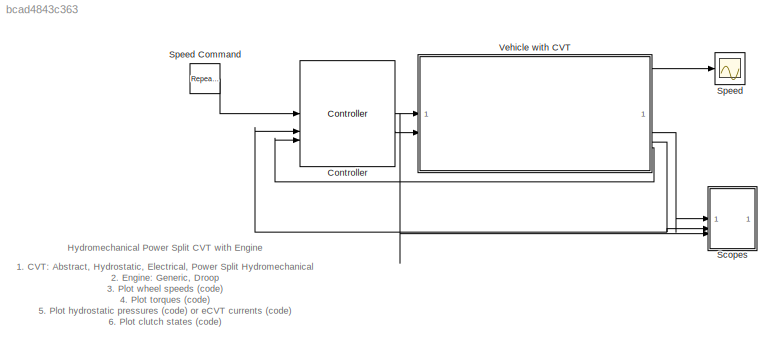
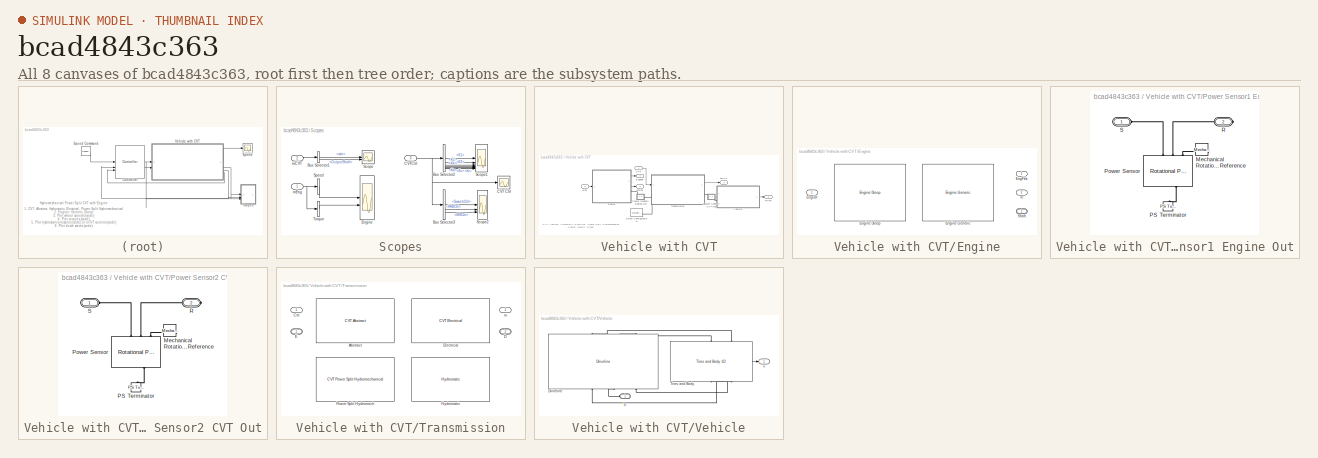
[diagram: thumbnail index - all 8 canvases of the model, root first then tree order]
MODEL slx_bcad4843c363
KIND model
CONFIG AbsTol = auto
CONFIG EnableMultiTasking = off
CONFIG FixedStep = auto
CONFIG MaxStep = auto
CONFIG MinStep = auto
CONFIG RelTol = 1e-3
CONFIG SampleTimeConstraint = Unconstrained
CONFIG SolverName = VariableStepAuto
CONFIG StartFcn = tic
CONFIG StartTime = 0.0
CONFIG StopFcn = Elapsed_Sim_Time = toc;\ndisp(['Elapsed Sim Time = ' num2str(Elapsed_Sim_Time)]);
CONFIG StopTime = 70
BLOCK [Reference] Controller  REF=sm_wheel_loader_lib/Controller  (lib defined in slx_2f13f0afc9e9, slx_78fdec152d5c)
  SourceBlock = sm_wheel_loader_lib/Controller
  SourceType = SubSystem
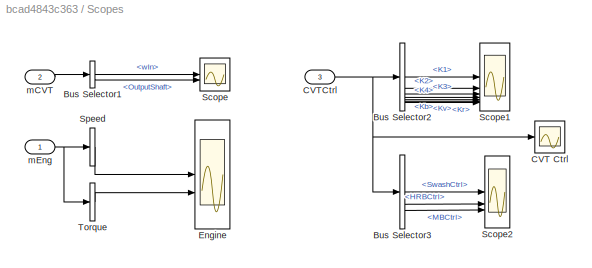
BLOCK [SubSystem] Scopes
BLOCK [BusSelector] Scopes/Bus Selector1
  OutputSignals = wIn,OutputShaft
BLOCK [BusSelector] Scopes/Bus Selector2
  NameLocation = top
  OutputSignals = K1,K2,K3,K4,Kb,Kv,Kr
BLOCK [BusSelector] Scopes/Bus Selector3
  OutputSignals = SwashCtrl,HRBCtrl,MBCtrl
BLOCK [Scope] Scopes/CVT Ctrl
  Floating = off
  NumInputPorts = 1
  ScopeSpecificationString = Simulink.scopes.TimeScopeBlockCfg('CurrentConfiguration', extmgr.ConfigurationSet(extmgr.Configuration('Core','General UI',true),extmgr.Configuration('Core','Source UI',true),extmgr.Configuration('Sources','WiredSimulink',true,'DataLoggingVariableName','ScopeData2'),extmgr.Configuration('Visuals','Time Domain',true,'SerializedDisplays',{struct('MinYLimReal','-0.96987','MaxYLimReal','1.21887','YLab...<+1872ch>
BLOCK [Inport] Scopes/CVTCtrl
  Port = 3
BLOCK [Scope] Scopes/Engine
  Floating = off
  NumInputPorts = 2
  ScopeSpecificationString = Simulink.scopes.TimeScopeBlockCfg('CurrentConfiguration', extmgr.ConfigurationSet(extmgr.Configuration('Core','General UI',true),extmgr.Configuration('Core','Source UI',true),extmgr.Configuration('Sources','WiredSimulink',true,'DataLoggingVariableName','ScopeData1'),extmgr.Configuration('Visuals','Time Domain',true,'SerializedDisplays',{struct('MinYLimReal','-286.4333','MaxYLimReal','2577.89969','...<+2089ch>
BLOCK [Scope] Scopes/Scope
  Floating = off
  NumInputPorts = 2
  ScopeSpecificationString = Simulink.scopes.TimeScopeBlockCfg('CurrentConfiguration', extmgr.ConfigurationSet(extmgr.Configuration('Core','General UI',true),extmgr.Configuration('Core','Source UI',true),extmgr.Configuration('Sources','WiredSimulink',true,'DataLoggingVariableName','ScopeData4'),extmgr.Configuration('Visuals','Time Domain',true,'SerializedDisplays',{struct('MinYLimReal','-1460.02488','MaxYLimReal','1460.04785'...<+2070ch>
BLOCK [Scope] Scopes/Scope1
  Floating = off
  NumInputPorts = 7
  ScopeSpecificationString = Simulink.scopes.TimeScopeBlockCfg('CurrentConfiguration', extmgr.ConfigurationSet(extmgr.Configuration('Core','General UI',true),extmgr.Configuration('Core','Source UI',true),extmgr.Configuration('Sources','WiredSimulink',true,'DataLoggingVariableName','ScopeData3'),extmgr.Configuration('Visuals','Time Domain',true,'SerializedDisplays',{struct('MinYLimReal','-0.125','MaxYLimReal','1.125','YLabelRe...<+6158ch>
BLOCK [Scope] Scopes/Scope2
  Floating = off
  NumInputPorts = 3
  ScopeSpecificationString = Simulink.scopes.TimeScopeBlockCfg('CurrentConfiguration', extmgr.ConfigurationSet(extmgr.Configuration('Core','General UI',true),extmgr.Configuration('Core','Source UI',true),extmgr.Configuration('Sources','WiredSimulink',true,'DataLoggingVariableName','ScopeData4'),extmgr.Configuration('Visuals','Time Domain',true,'SerializedDisplays',{struct('MinYLimReal','-0.96987','MaxYLimReal','1.21887','YLab...<+1476ch>
BLOCK [BusSelector] Scopes/Speed
  OutputAsBus = on
  OutputSignals = w.cmd,w.meas
BLOCK [BusSelector] Scopes/Torque
  OutputAsBus = on
  OutputSignals = trq.Cmd
BLOCK [Inport] Scopes/mCVT
  Port = 2
BLOCK [Inport] Scopes/mEng
BLOCK [Scope] Speed
  Floating = off
  NumInputPorts = 1
  ScopeSpecificationString = Simulink.scopes.TimeScopeBlockCfg('CurrentConfiguration', extmgr.ConfigurationSet(extmgr.Configuration('Core','General UI',true),extmgr.Configuration('Core','Source UI',true),extmgr.Configuration('Sources','WiredSimulink',true,'DataLoggingVariableName','ScopeData1'),extmgr.Configuration('Visuals','Time Domain',true,'SerializedDisplays',{struct('MinYLimReal','-9.37204','MaxYLimReal','9.37302','YLab...<+1496ch>
BLOCK [Reference] Speed Command  REF=simulink/Sources/Repeating
Sequence
  SourceBlock = simulink/Sources/Repeating\nSequence
  SourceType = Repeating table
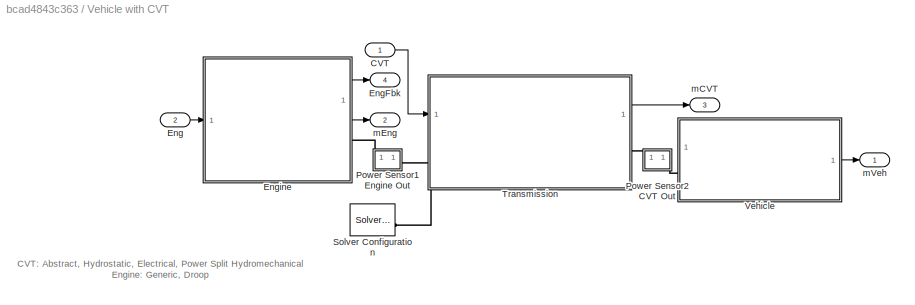
BLOCK [SubSystem] Vehicle with CVT
BLOCK [Inport] Vehicle with CVT/CVT
  NameLocation = top
BLOCK [Inport] Vehicle with CVT/Eng
  Port = 2
BLOCK [Outport] Vehicle with CVT/EngFbk
  Port = 4
BLOCK [SubSystem] Vehicle with CVT/Engine
  AttributesFormatString = %<LabelModeActiveChoice>
  LabelModeActiveChoice = Droop
  Variant = on
  VariantControl = Choice
  VariantControlMode = label
BLOCK [Inport] Vehicle with CVT/Engine/EngCtrl
BLOCK [Outport] Vehicle with CVT/Engine/EngFbk
BLOCK [Reference] Vehicle with CVT/Engine/Engine Droop  REF=sm_wheel_loader_lib/Engine Droop  (lib defined in slx_2f13f0afc9e9, slx_78fdec152d5c)
  SourceBlock = sm_wheel_loader_lib/Engine Droop
BLOCK [Reference] Vehicle with CVT/Engine/Engine Generic  REF=sm_wheel_loader_lib/Engine Generic  (lib defined in slx_2f13f0afc9e9, slx_78fdec152d5c)
  SourceBlock = sm_wheel_loader_lib/Engine Generic
BLOCK [PMIOPort] Vehicle with CVT/Engine/Shaft
  Side = Right
BLOCK [Outport] Vehicle with CVT/Engine/m
  Port = 2
BLOCK [SubSystem] Vehicle with CVT/Power Sensor1 Engine Out
BLOCK [Reference] Vehicle with CVT/Power Sensor1 Engine Out/Mechanical Rotational Reference  REF=fl_lib/Mechanical/Rotational Elements/Mechanical
Rotational Reference
  NameLocation = top
  SourceBlock = fl_lib/Mechanical/Rotational Elements/Mechanical\nRotational Reference
  SourceType = Mechanical\nRotational Reference
BLOCK [Reference] Vehicle with CVT/Power Sensor1 Engine Out/PS Terminator  REF=fl_lib/Physical Signals/Sinks/PS Terminator
  NameLocation = left
  SourceBlock = fl_lib/Physical Signals/Sinks/PS Terminator
  SourceType = PS Terminator
BLOCK [Reference] Vehicle with CVT/Power Sensor1 Engine Out/Power Sensor  REF=sdl_lib/Sensors/Rotational Power
Sensor
  NameLocation = left
  SourceBlock = sdl_lib/Sensors/Rotational Power\nSensor
  SourceType = Rotational Power\nSensor
BLOCK [PMIOPort] Vehicle with CVT/Power Sensor1 Engine Out/R
  Port = 2
  Side = Right
BLOCK [PMIOPort] Vehicle with CVT/Power Sensor1 Engine Out/S
  Side = Left
BLOCK [SubSystem] Vehicle with CVT/Power Sensor2 CVT Out
BLOCK [Reference] Vehicle with CVT/Power Sensor2 CVT Out/Mechanical Rotational Reference  REF=fl_lib/Mechanical/Rotational Elements/Mechanical
Rotational Reference
  NameLocation = top
  SourceBlock = fl_lib/Mechanical/Rotational Elements/Mechanical\nRotational Reference
  SourceType = Mechanical\nRotational Reference
BLOCK [Reference] Vehicle with CVT/Power Sensor2 CVT Out/PS Terminator  REF=fl_lib/Physical Signals/Sinks/PS Terminator
  NameLocation = left
  SourceBlock = fl_lib/Physical Signals/Sinks/PS Terminator
  SourceType = PS Terminator
BLOCK [Reference] Vehicle with CVT/Power Sensor2 CVT Out/Power Sensor  REF=sdl_lib/Sensors/Rotational Power
Sensor
  NameLocation = left
  SourceBlock = sdl_lib/Sensors/Rotational Power\nSensor
  SourceType = Rotational Power\nSensor
BLOCK [PMIOPort] Vehicle with CVT/Power Sensor2 CVT Out/R
  Port = 2
  Side = Right
BLOCK [PMIOPort] Vehicle with CVT/Power Sensor2 CVT Out/S
  Side = Left
BLOCK [Reference] Vehicle with CVT/Solver Configuration  REF=nesl_utility/Solver
Configuration
  SourceBlock = nesl_utility/Solver\nConfiguration
  SourceType = Solver\nConfiguration
BLOCK [SubSystem] Vehicle with CVT/Transmission
  AttributesFormatString = %<LabelModeActiveChoice>
  LabelModeActiveChoice = Abstract
  Variant = on
  VariantControl = Choice
  VariantControlMode = label
BLOCK [Reference] Vehicle with CVT/Transmission/Abstract  REF=sm_wheel_loader_lib/CVT Abstract  (lib defined in slx_2f13f0afc9e9, slx_78fdec152d5c)
  SourceBlock = sm_wheel_loader_lib/CVT Abstract
  SourceType = Continuously Variable Transmission (Abstract)
BLOCK [Inport] Vehicle with CVT/Transmission/Ctrl
BLOCK [PMIOPort] Vehicle with CVT/Transmission/D
  Port = 2
  Side = Right
BLOCK [PMIOPort] Vehicle with CVT/Transmission/E
  Side = Left
BLOCK [Reference] Vehicle with CVT/Transmission/Electrical  REF=sm_wheel_loader_lib/CVT Electrical  (lib defined in slx_2f13f0afc9e9, slx_78fdec152d5c)
  SourceBlock = sm_wheel_loader_lib/CVT Electrical
  SourceType = Electrical Continuously Variable Transmission (eCVT)
BLOCK [Reference] Vehicle with CVT/Transmission/Hydrostatic  REF=sm_wheel_loader_lib/Hydrostatic  (lib defined in slx_2f13f0afc9e9, slx_78fdec152d5c)
  SourceBlock = sm_wheel_loader_lib/Hydrostatic
BLOCK [Reference] Vehicle with CVT/Transmission/Power Split Hydromech  REF=sm_wheel_loader_lib/CVT Power Split Hydromechanical  (lib defined in slx_2f13f0afc9e9, slx_78fdec152d5c)
  LibrarySourceBlock = sm_wheel_loader_lib/CVT Powersplit Hydromechanical
  SourceBlock = sm_wheel_loader_lib/CVT Power Split Hydromechanical
BLOCK [Outport] Vehicle with CVT/Transmission/m
BLOCK [SubSystem] Vehicle with CVT/Vehicle
BLOCK [Reference] Vehicle with CVT/Vehicle/Driveline  REF=sm_wheel_loader_lib/Wheel Loader Vehicle/Driveline/Driveline/Driveline 1D/Driveline  (lib defined in slx_2f13f0afc9e9, slx_78fdec152d5c)
  NameLocation = top
  SourceBlock = sm_wheel_loader_lib/Wheel Loader Vehicle/Driveline/Driveline/Driveline 1D/Driveline
BLOCK [Reference] Vehicle with CVT/Vehicle/Tires and Body  REF=sm_wheel_loader_lib/Tires and Body 1D  (lib defined in slx_2f13f0afc9e9, slx_78fdec152d5c)
  NameLocation = top
  SourceBlock = sm_wheel_loader_lib/Tires and Body 1D
BLOCK [PMIOPort] Vehicle with CVT/Vehicle/Tr
  Side = Left
BLOCK [Outport] Vehicle with CVT/Vehicle/v
BLOCK [Outport] Vehicle with CVT/mCVT
  NameLocation = top
  Port = 3
BLOCK [Outport] Vehicle with CVT/mEng
  Port = 2
BLOCK [Outport] Vehicle with CVT/mVeh
ANNOTATION (root): 1. CVT: Abstract , Hydrostatic , Electrical , Power Split Hydromechanical 2. Engine: Generic , Droop 3. Plot wheel speeds ( code ) 4. Plot torques ( code ) 5. Plot hydrostatic pressures ( code ) or eCVT currents ( code ) 6. Plot clutch states ( code ) 7. Explore simulation results using sscexplore 8. Learn more about this example
ANNOTATION (root): Hydromechanical Power Split CVT with Engine
ANNOTATION Vehicle with CVT: CVT: Abstract , Hydrostatic , Electrical , Power Split Hydromechanical Engine: Generic , Droop
NET Controller:1 -> Scopes:3, Vehicle with CVT:1
LINE Controller:2 -> Vehicle with CVT:2
LINE Scopes/Bus Selector1:1 -> Scopes/Scope:1
LINE Scopes/Bus Selector1:2 -> Scopes/Scope:2
LINE Scopes/Bus Selector2:1 -> Scopes/Scope1:1
LINE Scopes/Bus Selector2:2 -> Scopes/Scope1:2
LINE Scopes/Bus Selector2:3 -> Scopes/Scope1:3
LINE Scopes/Bus Selector2:4 -> Scopes/Scope1:4
LINE Scopes/Bus Selector2:5 -> Scopes/Scope1:5
LINE Scopes/Bus Selector2:6 -> Scopes/Scope1:6
LINE Scopes/Bus Selector2:7 -> Scopes/Scope1:7
LINE Scopes/Bus Selector3:1 -> Scopes/Scope2:1
LINE Scopes/Bus Selector3:2 -> Scopes/Scope2:2
LINE Scopes/Bus Selector3:3 -> Scopes/Scope2:3
NET Scopes/CVTCtrl:1 -> Scopes/Bus Selector2:1, Scopes/Bus Selector3:1, Scopes/CVT Ctrl:1
LINE Scopes/Speed:1 -> Scopes/Engine:1
LINE Scopes/Torque:1 -> Scopes/Engine:2
LINE Scopes/mCVT:1 -> Scopes/Bus Selector1:1
NET Scopes/mEng:1 -> Scopes/Speed:1, Scopes/Torque:1
LINE Speed Command:1 -> Controller:1
LINE Vehicle with CVT/CVT:1 -> Vehicle with CVT/Transmission:1
LINE Vehicle with CVT/Eng:1 -> Vehicle with CVT/Engine:1
LINE Vehicle with CVT/Engine:1 -> Vehicle with CVT/EngFbk:1
LINE Vehicle with CVT/Engine:2 -> Vehicle with CVT/mEng:1
LINE Vehicle with CVT/Transmission:1 -> Vehicle with CVT/mCVT:1
LINE Vehicle with CVT/Vehicle/Tires and Body:1 -> Vehicle with CVT/Vehicle/v:1
LINE Vehicle with CVT/Vehicle:1 -> Vehicle with CVT/mVeh:1
LINE Vehicle with CVT:1 -> Speed:1
LINE Vehicle with CVT:2 -> Scopes:1
NET Vehicle with CVT:3 -> Controller:2, Scopes:2
LINE Vehicle with CVT:4 -> Controller:3
PLINE Vehicle with CVT/Engine:RConn1 -- Vehicle with CVT/Power Sensor1 Engine Out:LConn1
PLINE Vehicle with CVT/Power Sensor1 Engine Out/Mechanical Rotational Reference:LConn1 -- Vehicle with CVT/Power Sensor1 Engine Out/Power Sensor:LConn3
PLINE Vehicle with CVT/Power Sensor1 Engine Out/PS Terminator:LConn1 -- Vehicle with CVT/Power Sensor1 Engine Out/Power Sensor:RConn1
PLINE Vehicle with CVT/Power Sensor1 Engine Out/Power Sensor:LConn1 -- Vehicle with CVT/Power Sensor1 Engine Out/S:RConn1
PLINE Vehicle with CVT/Power Sensor1 Engine Out/Power Sensor:LConn2 -- Vehicle with CVT/Power Sensor1 Engine Out/R:RConn1
PNET net1: Vehicle with CVT/Power Sensor1 Engine Out:RConn1 -- Vehicle with CVT/Solver Configuration:RConn1 -- Vehicle with CVT/Transmission:LConn1
PLINE Vehicle with CVT/Power Sensor2 CVT Out/Mechanical Rotational Reference:LConn1 -- Vehicle with CVT/Power Sensor2 CVT Out/Power Sensor:LConn3
PLINE Vehicle with CVT/Power Sensor2 CVT Out/PS Terminator:LConn1 -- Vehicle with CVT/Power Sensor2 CVT Out/Power Sensor:RConn1
PLINE Vehicle with CVT/Power Sensor2 CVT Out/Power Sensor:LConn1 -- Vehicle with CVT/Power Sensor2 CVT Out/S:RConn1
PLINE Vehicle with CVT/Power Sensor2 CVT Out/Power Sensor:LConn2 -- Vehicle with CVT/Power Sensor2 CVT Out/R:RConn1
PLINE Vehicle with CVT/Power Sensor2 CVT Out:LConn1 -- Vehicle with CVT/Transmission:RConn1
PLINE Vehicle with CVT/Power Sensor2 CVT Out:RConn1 -- Vehicle with CVT/Vehicle:LConn1
PLINE Vehicle with CVT/Vehicle/Driveline:LConn1 -- Vehicle with CVT/Vehicle/Tires and Body:LConn2
PLINE Vehicle with CVT/Vehicle/Driveline:LConn3 -- Vehicle with CVT/Vehicle/Tires and Body:LConn1
PLINE Vehicle with CVT/Vehicle/Driveline:RConn1 -- Vehicle with CVT/Vehicle/Tires and Body:RConn2
PLINE Vehicle with CVT/Vehicle/Driveline:RConn2 -- Vehicle with CVT/Vehicle/Tr:RConn1
PLINE Vehicle with CVT/Vehicle/Driveline:RConn3 -- Vehicle with CVT/Vehicle/Tires and Body:RConn1
note: NET lines group one-source signal fan-out (src -> all destinations, sorted); 1:1 wires keep LINE; PNET lines group multi-terminal physical nets as a canonical sorted terminal list (undirected conserving connections); 2-terminal nets keep the pairwise PLINE form
